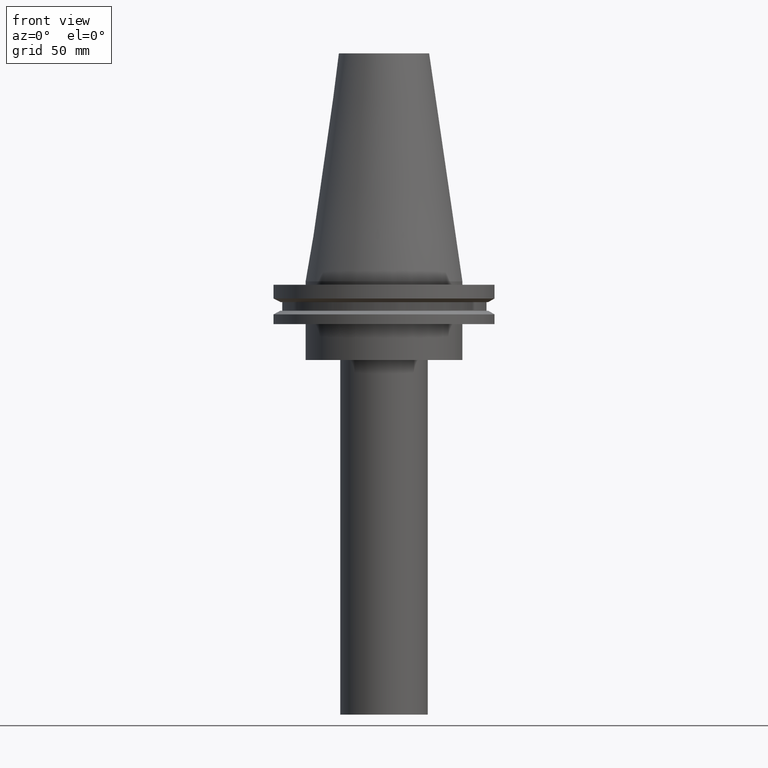
[diagram: clean part render]
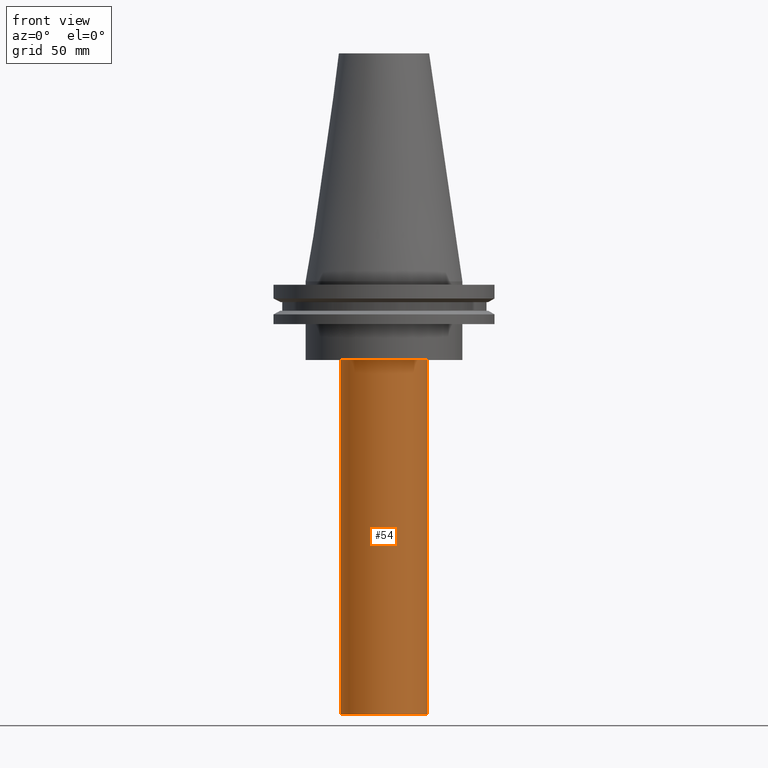
[diagram: same view with one face highlighted and labeled with its STEP entity id]
A machine part, front view. The second image highlights one B-rep face of the part: STEP entity #54.
In plain terms, the highlighted cylindrical surface (bore or boss wall) has radius 19.5 mm, axis along (-0, -0, 1).
Its self-contained STEP definition (entity closure, byte-faithful):
#26 = DIRECTION ( 'NONE',  ( -0.000000000000000000, -0.000000000000000000, 1.000000000000000000 ) ) ;
#30 = ORIENTED_EDGE ( 'NONE', *, *, #42, .T. ) ;
#42 = EDGE_CURVE ( 'NONE', #299, #299, #59, .T. ) ;
#54 = ADVANCED_FACE ( 'NONE', ( #158, #225 ), #156, .T. ) ;
#56 = CARTESIAN_POINT ( 'NONE',  ( 0.000000000000000000, 0.000000000000000000, -35.00000000000000000 ) ) ;
#59 = CIRCLE ( 'NONE', #228, 19.50000000000000000 ) ;
#61 = CARTESIAN_POINT ( 'NONE',  ( 0.000000000000000000, 0.000000000000000000, -193.0000000000000000 ) ) ;
#73 = CIRCLE ( 'NONE', #334, 19.50000000000000000 ) ;
#89 = VERTEX_POINT ( 'NONE', #338 ) ;
#107 = CARTESIAN_POINT ( 'NONE',  ( 19.50000000000000000, 0.000000000000000000, -193.0000000000000000 ) ) ;
#156 = CYLINDRICAL_SURFACE ( 'NONE', #193, 19.50000000000000000 ) ;
#158 = FACE_OUTER_BOUND ( 'NONE', #274, .T. ) ;
#167 = EDGE_LOOP ( 'NONE', ( #30 ) ) ;
#172 = DIRECTION ( 'NONE',  ( 1.000000000000000000, 0.000000000000000000, 0.000000000000000000 ) ) ;
#193 = AXIS2_PLACEMENT_3D ( 'NONE', #220, #314, #315 ) ;
#218 = DIRECTION ( 'NONE',  ( 1.000000000000000000, 0.000000000000000000, 0.000000000000000000 ) ) ;
#220 = CARTESIAN_POINT ( 'NONE',  ( 0.000000000000000000, 0.000000000000000000, 0.000000000000000000 ) ) ;
#225 = FACE_OUTER_BOUND ( 'NONE', #167, .T. ) ;
#228 = AXIS2_PLACEMENT_3D ( 'NONE', #61, #281, #218 ) ;
#274 = EDGE_LOOP ( 'NONE', ( #310 ) ) ;
#281 = DIRECTION ( 'NONE',  ( -0.000000000000000000, -0.000000000000000000, 1.000000000000000000 ) ) ;
#299 = VERTEX_POINT ( 'NONE', #107 ) ;
#310 = ORIENTED_EDGE ( 'NONE', *, *, #316, .F. ) ;
#314 = DIRECTION ( 'NONE',  ( -0.000000000000000000, -0.000000000000000000, 1.000000000000000000 ) ) ;
#315 = DIRECTION ( 'NONE',  ( 1.000000000000000000, 0.000000000000000000, 0.000000000000000000 ) ) ;
#316 = EDGE_CURVE ( 'NONE', #89, #89, #73, .T. ) ;
#334 = AXIS2_PLACEMENT_3D ( 'NONE', #56, #26, #172 ) ;
#338 = CARTESIAN_POINT ( 'NONE',  ( 19.50000000000000000, 0.000000000000000000, -35.00000000000000000 ) ) ;